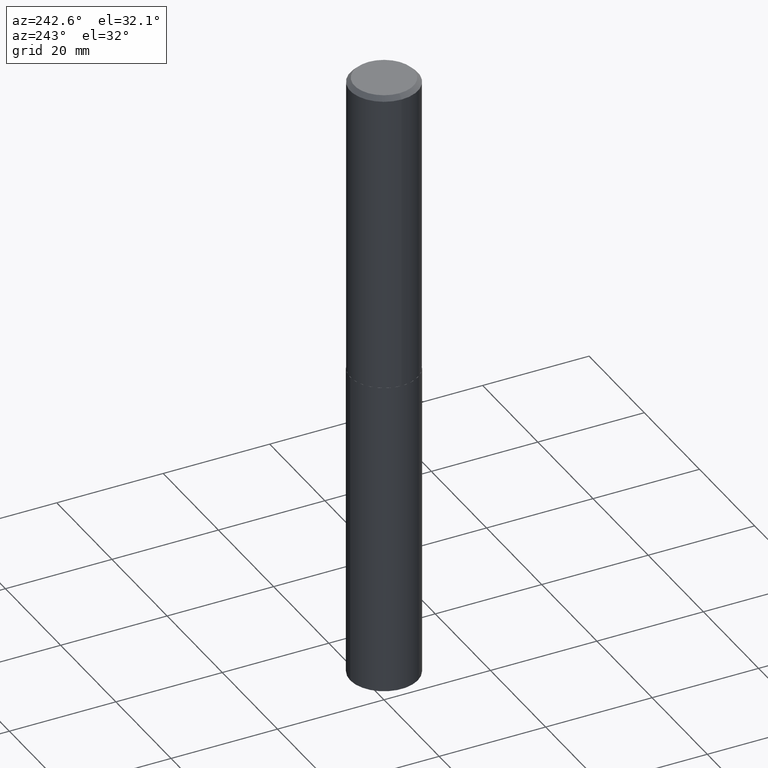
[diagram: clean part render]
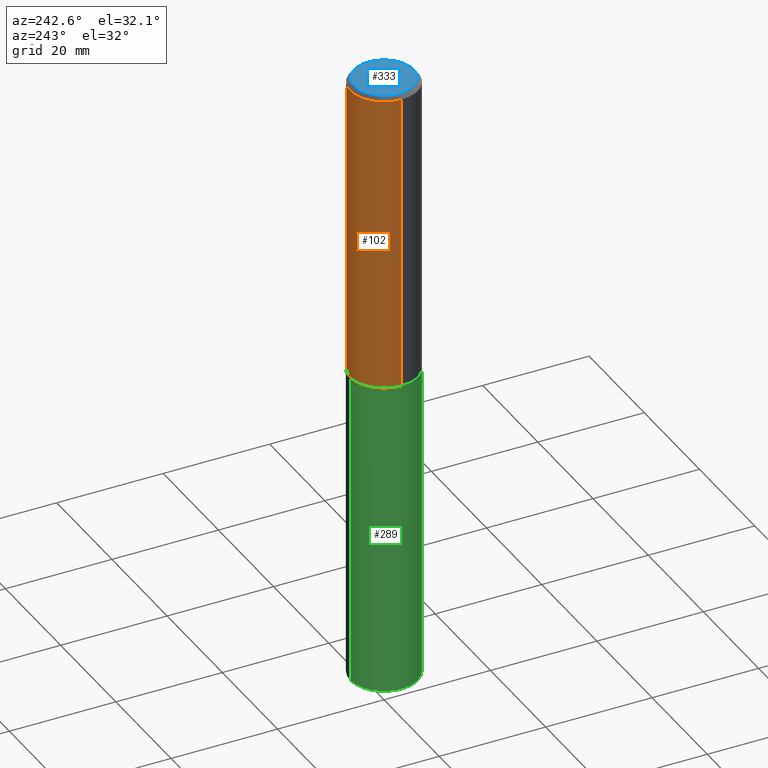
[diagram: same view with three faces highlighted in distinct colors, each labeled with its STEP entity id]
A machine part, auxiliary view with three faces highlighted in distinct colors.
Their STEP definitions:

[orange] entity #102 — the highlighted cylindrical surface (partial cylindrical patch) has radius 6.35 mm, axis along (-0, 0, 1).
#5 = VERTEX_POINT ( 'NONE', #135 ) ;
#17 = VERTEX_POINT ( 'NONE', #263 ) ;
#33 = DIRECTION ( 'NONE',  ( -2.445468806185136597E-29, 3.491481338843145583E-15, 1.000000000000000000 ) ) ;
#34 = EDGE_CURVE ( 'NONE', #230, #5, #328, .T. ) ;
#38 = DIRECTION ( 'NONE',  ( -2.445468806185136877E-29, 3.491481338843145188E-15, 1.000000000000000000 ) ) ;
#42 = VERTEX_POINT ( 'NONE', #296 ) ;
#49 = CARTESIAN_POINT ( 'NONE',  ( -0.2500000000000001110, 1.776356839400251254E-15, -1.229733772563727146E-29 ) ) ;
#75 = ORIENTED_EDGE ( 'NONE', *, *, #140, .F. ) ;
#102 = ADVANCED_FACE ( 'NONE', ( #147 ), #143, .T. ) ;
#135 = CARTESIAN_POINT ( 'NONE',  ( -0.2500000000000000000, -2.205241192383000191E-15, -0.03125000000000021511 ) ) ;
#140 = EDGE_CURVE ( 'NONE', #42, #5, #175, .T. ) ;
#143 = CYLINDRICAL_SURFACE ( 'NONE', #242, 0.2500000000000001110 ) ;
#144 = AXIS2_PLACEMENT_3D ( 'NONE', #336, #221, #314 ) ;
#147 = FACE_OUTER_BOUND ( 'NONE', #222, .T. ) ;
#167 = DIRECTION ( 'NONE',  ( -2.445468806185136877E-29, 3.491481338843145188E-15, 1.000000000000000000 ) ) ;
#172 = DIRECTION ( 'NONE',  ( -2.445468806185136597E-29, 3.491481338843145583E-15, 1.000000000000000000 ) ) ;
#175 = CIRCLE ( 'NONE', #271, 0.2500000000000000000 ) ;
#216 = ORIENTED_EDGE ( 'NONE', *, *, #34, .T. ) ;
#221 = DIRECTION ( 'NONE',  ( -2.445468806185136597E-29, 3.491481338843145583E-15, 1.000000000000000000 ) ) ;
#222 = EDGE_LOOP ( 'NONE', ( #372, #216, #75, #318 ) ) ;
#230 = VERTEX_POINT ( 'NONE', #335 ) ;
#242 = AXIS2_PLACEMENT_3D ( 'NONE', #301, #172, #274 ) ;
#259 = VECTOR ( 'NONE', #38, 39.37007874015748143 ) ;
#263 = CARTESIAN_POINT ( 'NONE',  ( 0.2500000000000002776, -9.599827941149224411E-15, -2.249499999999999833 ) ) ;
#269 = DIRECTION ( 'NONE',  ( 1.000000000000000000, -6.982962677686266711E-15, 0.000000000000000000 ) ) ;
#271 = AXIS2_PLACEMENT_3D ( 'NONE', #300, #33, #269 ) ;
#274 = DIRECTION ( 'NONE',  ( 1.000000000000000000, -6.982962677686267499E-15, 4.876176775795936353E-29 ) ) ;
#277 = CARTESIAN_POINT ( 'NONE',  ( 0.2500000000000001110, -1.745740669421567664E-15, 1.219044193948984649E-29 ) ) ;
#296 = CARTESIAN_POINT ( 'NONE',  ( 0.2500000000000000000, -1.854849461260415778E-15, -0.03125000000000021511 ) ) ;
#300 = CARTESIAN_POINT ( 'NONE',  ( 7.642090019328604414E-31, -1.091087918388490513E-16, -0.03125000000000021511 ) ) ;
#301 = CARTESIAN_POINT ( 'NONE',  ( 0.000000000000000000, 0.000000000000000000, 0.000000000000000000 ) ) ;
#304 = EDGE_CURVE ( 'NONE', #17, #230, #363, .T. ) ;
#314 = DIRECTION ( 'NONE',  ( 1.000000000000000000, -6.982962677686266711E-15, 0.000000000000000000 ) ) ;
#318 = ORIENTED_EDGE ( 'NONE', *, *, #358, .F. ) ;
#328 = LINE ( 'NONE', #49, #383 ) ;
#335 = CARTESIAN_POINT ( 'NONE',  ( -0.2500000000000002776, -6.077730432327403325E-15, -2.249499999999999833 ) ) ;
#336 = CARTESIAN_POINT ( 'NONE',  ( 5.501082079513464541E-29, -7.854087271727656156E-15, -2.249499999999999833 ) ) ;
#345 = LINE ( 'NONE', #277, #259 ) ;
#358 = EDGE_CURVE ( 'NONE', #17, #42, #345, .T. ) ;
#363 = CIRCLE ( 'NONE', #144, 0.2500000000000002776 ) ;
#372 = ORIENTED_EDGE ( 'NONE', *, *, #304, .T. ) ;
#383 = VECTOR ( 'NONE', #167, 39.37007874015748143 ) ;

[blue] entity #333 — the highlighted planar face has unit normal (0, -0, -1).
#41 = PLANE ( 'NONE',  #225 ) ;
#70 = CARTESIAN_POINT ( 'NONE',  ( -2.335971725809272108E-47, 3.335148527799636409E-33, 9.552245033349346191E-19 ) ) ;
#88 = EDGE_CURVE ( 'NONE', #370, #99, #302, .T. ) ;
#90 = DIRECTION ( 'NONE',  ( 2.438088387897960049E-29, -3.491481338843145188E-15, -1.000000000000000000 ) ) ;
#92 = DIRECTION ( 'NONE',  ( -1.000000000000000000, 6.982962677686265922E-15, -4.876176775795935793E-29 ) ) ;
#99 = VERTEX_POINT ( 'NONE', #332 ) ;
#160 = EDGE_LOOP ( 'NONE', ( #249, #346 ) ) ;
#169 = AXIS2_PLACEMENT_3D ( 'NONE', #178, #305, #366 ) ;
#178 = CARTESIAN_POINT ( 'NONE',  ( -2.335971725809272108E-47, 3.335148527799636409E-33, 9.552245033349346191E-19 ) ) ;
#189 = FACE_OUTER_BOUND ( 'NONE', #160, .T. ) ;
#218 = CARTESIAN_POINT ( 'NONE',  ( -1.167985862904636054E-47, 1.667574263899818204E-33, 4.776122516674673095E-19 ) ) ;
#225 = AXIS2_PLACEMENT_3D ( 'NONE', #218, #90, #92 ) ;
#249 = ORIENTED_EDGE ( 'NONE', *, *, #298, .T. ) ;
#257 = DIRECTION ( 'NONE',  ( -2.445468806185136597E-29, 3.491481338843145583E-15, 1.000000000000000000 ) ) ;
#283 = CIRCLE ( 'NONE', #169, 0.2187500000000000000 ) ;
#298 = EDGE_CURVE ( 'NONE', #99, #370, #283, .T. ) ;
#302 = CIRCLE ( 'NONE', #308, 0.2187500000000000000 ) ;
#305 = DIRECTION ( 'NONE',  ( -2.445468806185136597E-29, 3.491481338843145583E-15, 1.000000000000000000 ) ) ;
#306 = CARTESIAN_POINT ( 'NONE',  ( 0.2187500000000000000, -1.662483614147127260E-15, 9.552245033460884497E-19 ) ) ;
#308 = AXIS2_PLACEMENT_3D ( 'NONE', #70, #257, #313 ) ;
#313 = DIRECTION ( 'NONE',  ( 1.000000000000000000, -6.982962677686266711E-15, 4.876188151940832700E-29 ) ) ;
#332 = CARTESIAN_POINT ( 'NONE',  ( -0.2187500000000000000, 1.582077481663294210E-15, 9.552245033240612038E-19 ) ) ;
#333 = ADVANCED_FACE ( 'NONE', ( #189 ), #41, .F. ) ;
#346 = ORIENTED_EDGE ( 'NONE', *, *, #88, .T. ) ;
#366 = DIRECTION ( 'NONE',  ( 1.000000000000000000, -6.982962677686266711E-15, 4.876188151940832700E-29 ) ) ;
#370 = VERTEX_POINT ( 'NONE', #306 ) ;

[green] entity #289 — the highlighted cylindrical surface (partial cylindrical patch) has radius 6.35 mm, axis along (-0, 0, 1).
#23 = AXIS2_PLACEMENT_3D ( 'NONE', #239, #390, #60 ) ;
#60 = DIRECTION ( 'NONE',  ( -6.982962677686265922E-15, -1.000000000000000000, 3.278217592397115862E-15 ) ) ;
#67 = VECTOR ( 'NONE', #153, 39.37007874015748143 ) ;
#72 = ORIENTED_EDGE ( 'NONE', *, *, #187, .F. ) ;
#89 = CARTESIAN_POINT ( 'NONE',  ( 5.502304813916556222E-29, -7.855833012397076871E-15, -2.249999999999999556 ) ) ;
#117 = FACE_OUTER_BOUND ( 'NONE', #381, .T. ) ;
#124 = DIRECTION ( 'NONE',  ( -2.445535948441506068E-29, 3.491385187310524484E-15, 1.000000000000000000 ) ) ;
#127 = CARTESIAN_POINT ( 'NONE',  ( -1.745740669421511457E-15, -0.2500000000000078271, -2.249999999999999112 ) ) ;
#132 = ORIENTED_EDGE ( 'NONE', *, *, #384, .T. ) ;
#133 = AXIS2_PLACEMENT_3D ( 'NONE', #213, #157, #252 ) ;
#139 = VERTEX_POINT ( 'NONE', #362 ) ;
#153 = DIRECTION ( 'NONE',  ( -2.445535948441506068E-29, 3.491385187310524484E-15, 1.000000000000000000 ) ) ;
#155 = LINE ( 'NONE', #248, #272 ) ;
#157 = DIRECTION ( 'NONE',  ( -2.445535948441506068E-29, 3.491385187310524484E-15, 1.000000000000000000 ) ) ;
#181 = CARTESIAN_POINT ( 'NONE',  ( 1.776356839400362877E-15, 0.2499999999999921452, -2.250000000000000444 ) ) ;
#187 = EDGE_CURVE ( 'NONE', #315, #139, #374, .T. ) ;
#202 = ORIENTED_EDGE ( 'NONE', *, *, #355, .F. ) ;
#209 = CYLINDRICAL_SURFACE ( 'NONE', #23, 0.2500000000000000000 ) ;
#213 = CARTESIAN_POINT ( 'NONE',  ( 1.124878812406164387E-28, -1.605983701444562485E-14, -4.599784845243109821 ) ) ;
#215 = LINE ( 'NONE', #127, #67 ) ;
#234 = VERTEX_POINT ( 'NONE', #273 ) ;
#235 = DIRECTION ( 'NONE',  ( -2.445535948441506068E-29, 3.491385187310524484E-15, 1.000000000000000000 ) ) ;
#239 = CARTESIAN_POINT ( 'NONE',  ( 5.502304813916556222E-29, -7.855833012397076871E-15, -2.249999999999999556 ) ) ;
#241 = DIRECTION ( 'NONE',  ( -6.982962677686265922E-15, -1.000000000000000000, 3.278217592397115862E-15 ) ) ;
#246 = ORIENTED_EDGE ( 'NONE', *, *, #330, .T. ) ;
#248 = CARTESIAN_POINT ( 'NONE',  ( 1.776356839400305291E-15, 0.2499999999999921452, -2.250000000000000444 ) ) ;
#252 = DIRECTION ( 'NONE',  ( -6.982962677686265922E-15, -1.000000000000000000, 4.370956789862821150E-15 ) ) ;
#258 = AXIS2_PLACEMENT_3D ( 'NONE', #89, #235, #241 ) ;
#272 = VECTOR ( 'NONE', #124, 39.37007874015748143 ) ;
#273 = CARTESIAN_POINT ( 'NONE',  ( 1.776356839400362483E-15, 0.2499999999999839018, -4.599784845243110709 ) ) ;
#289 = ADVANCED_FACE ( 'NONE', ( #117 ), #209, .T. ) ;
#312 = VERTEX_POINT ( 'NONE', #364 ) ;
#315 = VERTEX_POINT ( 'NONE', #181 ) ;
#330 = EDGE_CURVE ( 'NONE', #234, #312, #368, .T. ) ;
#355 = EDGE_CURVE ( 'NONE', #234, #315, #155, .T. ) ;
#362 = CARTESIAN_POINT ( 'NONE',  ( -1.745740669421511457E-15, -0.2500000000000078271, -2.249999999999999112 ) ) ;
#364 = CARTESIAN_POINT ( 'NONE',  ( -1.745740669421453673E-15, -0.2500000000000159872, -4.599784845243108933 ) ) ;
#368 = CIRCLE ( 'NONE', #133, 0.2500000000000000000 ) ;
#374 = CIRCLE ( 'NONE', #258, 0.2500000000000000000 ) ;
#381 = EDGE_LOOP ( 'NONE', ( #202, #246, #132, #72 ) ) ;
#384 = EDGE_CURVE ( 'NONE', #312, #139, #215, .T. ) ;
#390 = DIRECTION ( 'NONE',  ( -2.445535948441506068E-29, 3.491385187310524484E-15, 1.000000000000000000 ) ) ;